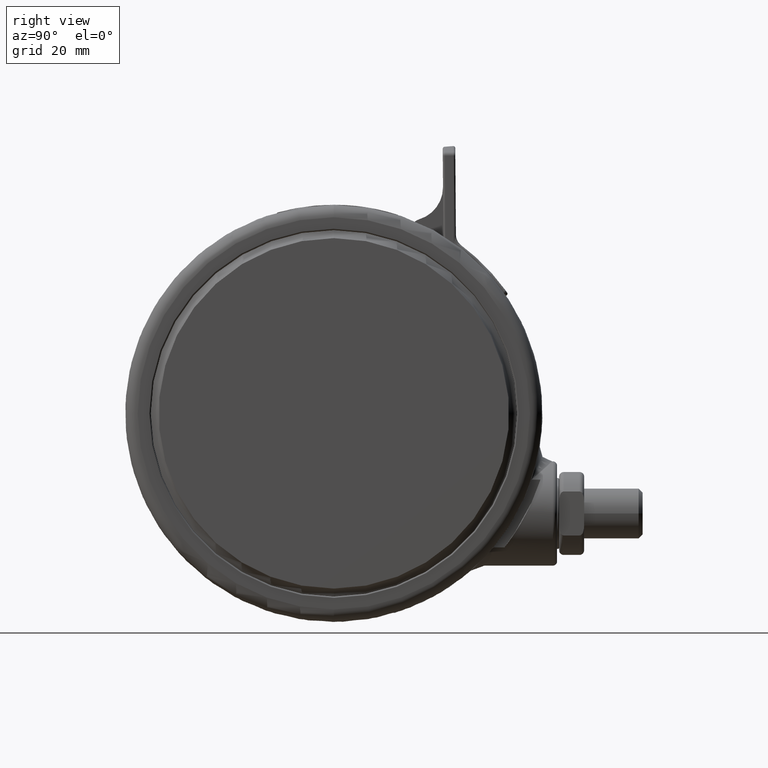
[diagram: clean part render]
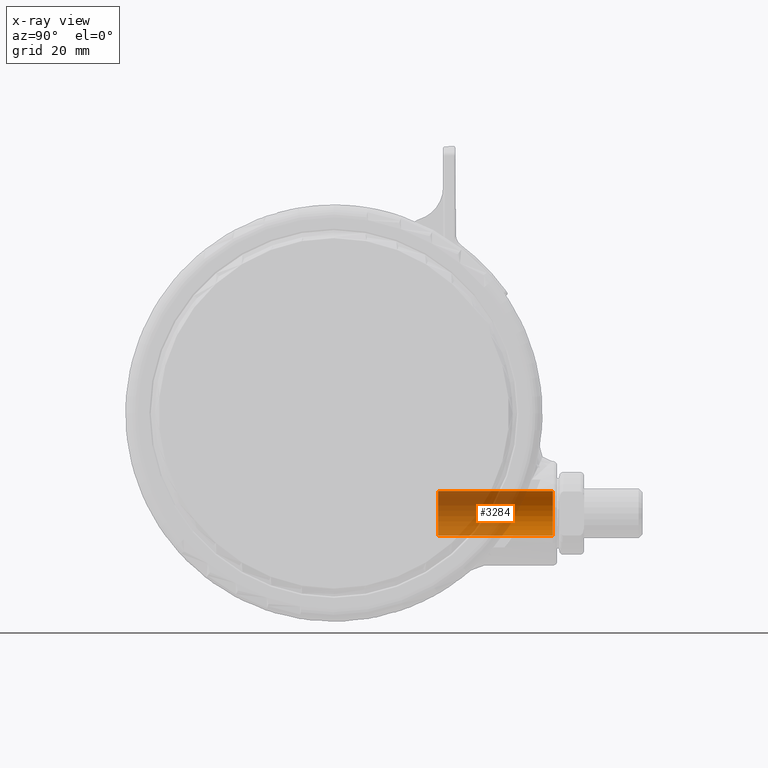
[diagram: x-ray — body ghosted, one internal face saturated and labeled with its STEP entity id]
A machine part, right view, then the same camera in x-ray: the body is ghosted and one INTERNAL B-rep face — a face not visible from any outside direction — is saturated and labeled: STEP entity #3284.
In plain terms, the highlighted cylindrical surface (edge-blend (fillet) strip) has radius 5.35 mm, axis along (0, 1, 0).
Its self-contained STEP definition (entity closure, byte-faithful):
#820 = AXIS2_PLACEMENT_3D ( 'NONE', #34146, #11531, #37936 ) ;
#1392 = AXIS2_PLACEMENT_3D ( 'NONE', #23798, #35034, #19969 ) ;
#3284 = ADVANCED_FACE ( 'NONE', ( #5169 ), #24100, .F. ) ;
#3799 = EDGE_CURVE ( 'NONE', #13768, #20217, #11643, .T. ) ;
#4582 = CARTESIAN_POINT ( 'NONE',  ( -23.99999999999999600, -25.00000000000000700, -24.29999999999995100 ) ) ;
#5169 = FACE_OUTER_BOUND ( 'NONE', #26243, .T. ) ;
#8379 = DIRECTION ( 'NONE',  ( 1.000000000000000000, 0.0000000000000000000, 0.0000000000000000000 ) ) ;
#9690 = DIRECTION ( 'NONE',  ( 2.360897160001558300E-016, -1.000000000000000000, 6.688773330916236600E-017 ) ) ;
#9826 = EDGE_CURVE ( 'NONE', #13768, #18906, #17511, .T. ) ;
#9973 = CARTESIAN_POINT ( 'NONE',  ( -29.34999999999999400, -61.36639215513579900, -24.29999999999995100 ) ) ;
#11531 = DIRECTION ( 'NONE',  ( 2.360897160001558300E-016, -1.000000000000000000, 6.688773330916236600E-017 ) ) ;
#11643 = CIRCLE ( 'NONE', #35886, 5.350000000000000500 ) ;
#13768 = VERTEX_POINT ( 'NONE', #20000 ) ;
#17511 = LINE ( 'NONE', #9973, #44099 ) ;
#18906 = VERTEX_POINT ( 'NONE', #39388 ) ;
#19969 = DIRECTION ( 'NONE',  ( 1.000000000000000000, 0.0000000000000000000, 0.0000000000000000000 ) ) ;
#20000 = CARTESIAN_POINT ( 'NONE',  ( -29.34999999999999100, -25.00000000000000700, -24.29999999999995100 ) ) ;
#20217 = VERTEX_POINT ( 'NONE', #37301 ) ;
#21700 = ORIENTED_EDGE ( 'NONE', *, *, #9826, .T. ) ;
#22327 = ORIENTED_EDGE ( 'NONE', *, *, #28571, .T. ) ;
#23798 = CARTESIAN_POINT ( 'NONE',  ( -23.99999999999999300, -61.36639215513579900, -24.29999999999995100 ) ) ;
#24100 = CYLINDRICAL_SURFACE ( 'NONE', #1392, 5.350000000000000500 ) ;
#24731 = CARTESIAN_POINT ( 'NONE',  ( -18.64999999999999100, -61.36639215513579900, -24.29999999999995100 ) ) ;
#25962 = LINE ( 'NONE', #24731, #42455 ) ;
#26037 = ORIENTED_EDGE ( 'NONE', *, *, #3799, .F. ) ;
#26243 = EDGE_LOOP ( 'NONE', ( #26037, #21700, #22327, #30204 ) ) ;
#28356 = VERTEX_POINT ( 'NONE', #28391 ) ;
#28391 = CARTESIAN_POINT ( 'NONE',  ( -18.64999999999999100, -52.50000000000000700, -24.29999999999995100 ) ) ;
#28571 = EDGE_CURVE ( 'NONE', #18906, #28356, #48508, .T. ) ;
#28833 = DIRECTION ( 'NONE',  ( 2.360897160001558300E-016, -1.000000000000000000, 6.688773330916236600E-017 ) ) ;
#30204 = ORIENTED_EDGE ( 'NONE', *, *, #30827, .F. ) ;
#30827 = EDGE_CURVE ( 'NONE', #20217, #28356, #25962, .T. ) ;
#31021 = DIRECTION ( 'NONE',  ( 2.360897160001558300E-016, -1.000000000000000000, 6.688773330916236600E-017 ) ) ;
#34146 = CARTESIAN_POINT ( 'NONE',  ( -23.99999999999999300, -52.50000000000000700, -24.29999999999995100 ) ) ;
#35034 = DIRECTION ( 'NONE',  ( 2.360897160001558300E-016, -1.000000000000000000, 6.688773330916236600E-017 ) ) ;
#35886 = AXIS2_PLACEMENT_3D ( 'NONE', #4582, #31021, #8379 ) ;
#37301 = CARTESIAN_POINT ( 'NONE',  ( -18.65000000000000200, -25.00000000000000700, -24.29999999999995100 ) ) ;
#37936 = DIRECTION ( 'NONE',  ( 1.000000000000000000, 0.0000000000000000000, 0.0000000000000000000 ) ) ;
#39388 = CARTESIAN_POINT ( 'NONE',  ( -29.34999999999999400, -52.50000000000000700, -24.29999999999995500 ) ) ;
#42455 = VECTOR ( 'NONE', #9690, 1000.000000000000000 ) ;
#44099 = VECTOR ( 'NONE', #28833, 1000.000000000000000 ) ;
#48508 = CIRCLE ( 'NONE', #820, 5.350000000000000500 ) ;